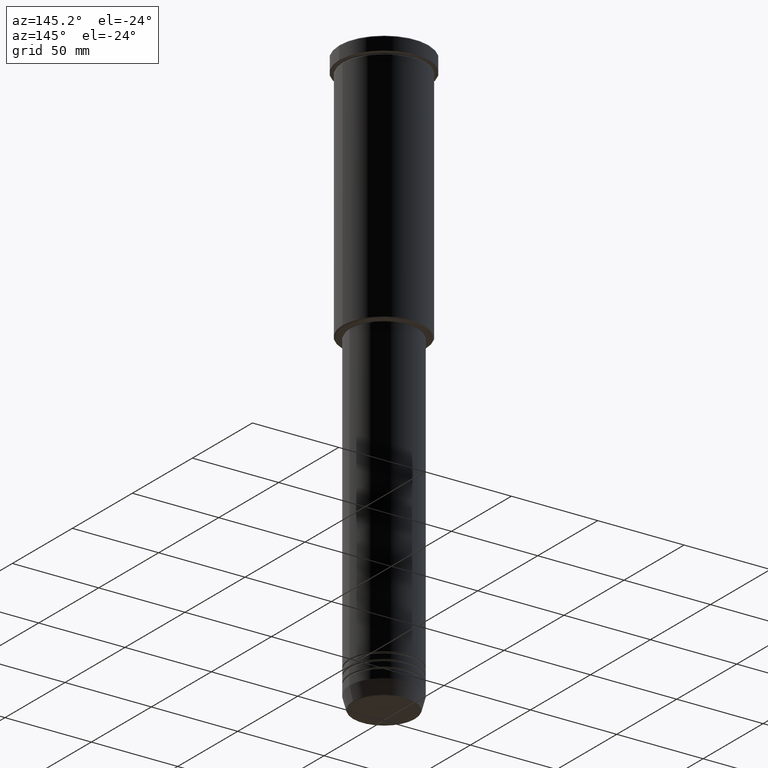
[diagram: clean part render]
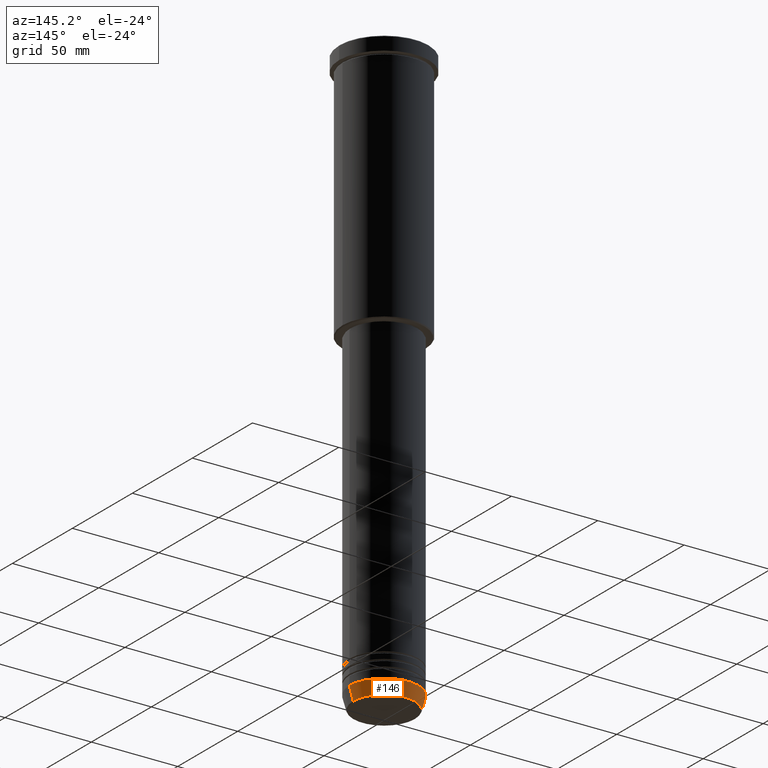
[diagram: same view with one face highlighted and labeled with its STEP entity id]
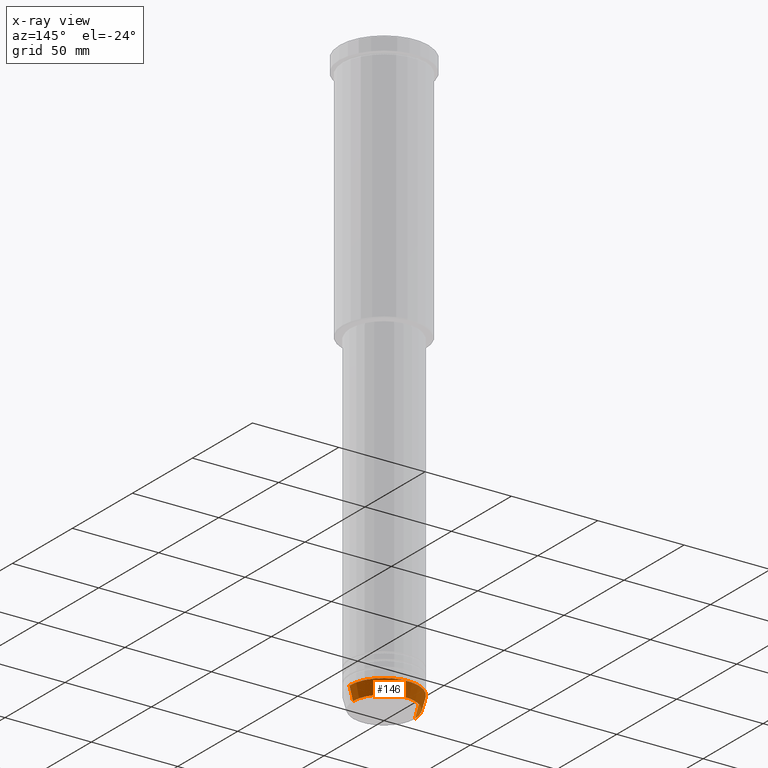
[diagram: x-ray of the same camera — body ghosted, the highlighted face saturated]
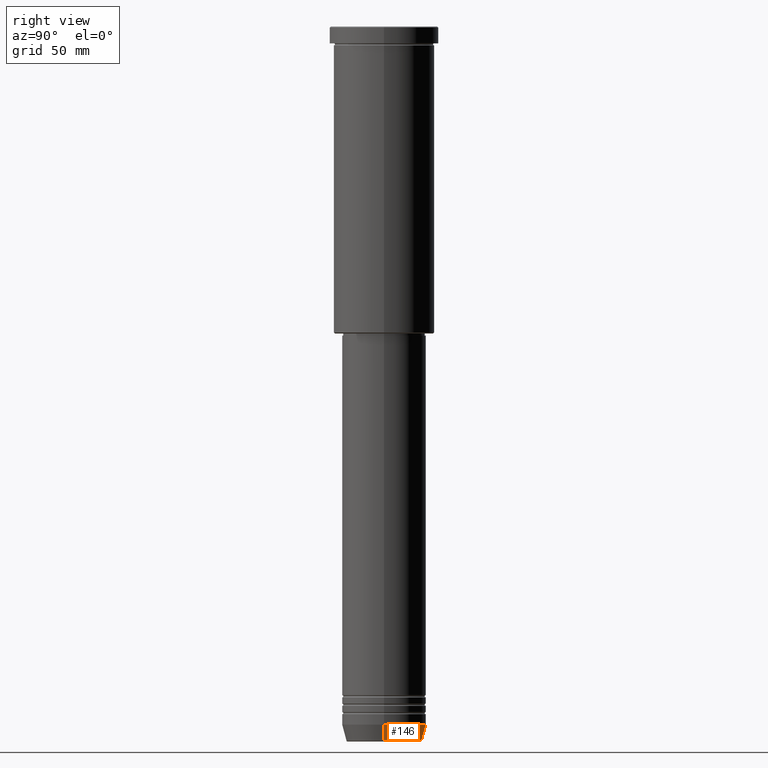
[diagram: same view with one face highlighted and labeled with its STEP entity id]
A machine part, auxiliary view. The second image highlights one B-rep face of the part: STEP entity #146.
The next image is the same camera in x-ray: the body ghosted, the highlighted face saturated — about 0% of this face is hidden behind the body in this view.
A second angle (right view) of the same face is appended — the face is thin or edge-on in the first view.
In plain terms, the highlighted conical surface has half-angle 15 deg.
Its self-contained STEP definition (entity closure, byte-faithful):
#21 = ORIENTED_EDGE ( 'NONE', *, *, #527, .T. ) ;
#61 = VERTEX_POINT ( 'NONE', #487 ) ;
#82 = DIRECTION ( 'NONE',  ( -0.000000000000000000, -0.000000000000000000, 1.000000000000000000 ) ) ;
#108 = CIRCLE ( 'NONE', #987, 17.95570587970608045 ) ;
#115 = DIRECTION ( 'NONE',  ( 0.2588190451025212391, 0.000000000000000000, 0.9659258262890680902 ) ) ;
#146 = ADVANCED_FACE ( 'NONE', ( #1150 ), #254, .T. ) ;
#152 = DIRECTION ( 'NONE',  ( -0.000000000000000000, -0.000000000000000000, 1.000000000000000000 ) ) ;
#190 = VERTEX_POINT ( 'NONE', #437 ) ;
#254 = CONICAL_SURFACE ( 'NONE', #391, 20.00000000000000355, 0.2617993877991499629 ) ;
#290 = VERTEX_POINT ( 'NONE', #1025 ) ;
#311 = DIRECTION ( 'NONE',  ( -0.000000000000000000, -0.000000000000000000, 1.000000000000000000 ) ) ;
#334 = ORIENTED_EDGE ( 'NONE', *, *, #340, .T. ) ;
#340 = EDGE_CURVE ( 'NONE', #61, #290, #1017, .T. ) ;
#391 = AXIS2_PLACEMENT_3D ( 'NONE', #534, #82, #1146 ) ;
#437 = CARTESIAN_POINT ( 'NONE',  ( 17.95570587970608045, 0.000000000000000000, -339.6294095225512706 ) ) ;
#476 = CARTESIAN_POINT ( 'NONE',  ( 0.000000000000000000, 0.000000000000000000, -339.6294095225512706 ) ) ;
#487 = CARTESIAN_POINT ( 'NONE',  ( -17.95570587970608045, 2.324116685748021371E-15, -339.6294095225512706 ) ) ;
#517 = VERTEX_POINT ( 'NONE', #1040 ) ;
#521 = ORIENTED_EDGE ( 'NONE', *, *, #979, .F. ) ;
#527 = EDGE_CURVE ( 'NONE', #190, #61, #108, .T. ) ;
#534 = CARTESIAN_POINT ( 'NONE',  ( 0.000000000000000000, 0.000000000000000000, -332.0000000000000000 ) ) ;
#684 = DIRECTION ( 'NONE',  ( 1.000000000000000000, 0.000000000000000000, 0.000000000000000000 ) ) ;
#709 = ORIENTED_EDGE ( 'NONE', *, *, #727, .F. ) ;
#727 = EDGE_CURVE ( 'NONE', #190, #517, #1128, .T. ) ;
#775 = VECTOR ( 'NONE', #115, 1000.000000000000114 ) ;
#826 = CARTESIAN_POINT ( 'NONE',  ( -20.00000000000000355, 2.449293598294706907E-15, -332.0000000000000000 ) ) ;
#832 = DIRECTION ( 'NONE',  ( 1.000000000000000000, 0.000000000000000000, 0.000000000000000000 ) ) ;
#876 = VECTOR ( 'NONE', #914, 1000.000000000000114 ) ;
#877 = CARTESIAN_POINT ( 'NONE',  ( 0.000000000000000000, 0.000000000000000000, -332.0000000000000000 ) ) ;
#914 = DIRECTION ( 'NONE',  ( -0.2588190451025212391, 3.169619151431771721E-17, 0.9659258262890680902 ) ) ;
#916 = AXIS2_PLACEMENT_3D ( 'NONE', #877, #152, #832 ) ;
#979 = EDGE_CURVE ( 'NONE', #517, #290, #989, .T. ) ;
#987 = AXIS2_PLACEMENT_3D ( 'NONE', #476, #311, #684 ) ;
#989 = CIRCLE ( 'NONE', #916, 20.00000000000000355 ) ;
#1017 = LINE ( 'NONE', #826, #876 ) ;
#1025 = CARTESIAN_POINT ( 'NONE',  ( -20.00000000000000355, 2.449293598294706907E-15, -332.0000000000000000 ) ) ;
#1040 = CARTESIAN_POINT ( 'NONE',  ( 20.00000000000000355, 0.000000000000000000, -332.0000000000000000 ) ) ;
#1042 = CARTESIAN_POINT ( 'NONE',  ( 20.00000000000000355, 0.000000000000000000, -332.0000000000000000 ) ) ;
#1096 = EDGE_LOOP ( 'NONE', ( #21, #334, #521, #709 ) ) ;
#1128 = LINE ( 'NONE', #1042, #775 ) ;
#1146 = DIRECTION ( 'NONE',  ( 1.000000000000000000, 0.000000000000000000, 0.000000000000000000 ) ) ;
#1150 = FACE_OUTER_BOUND ( 'NONE', #1096, .T. ) ;